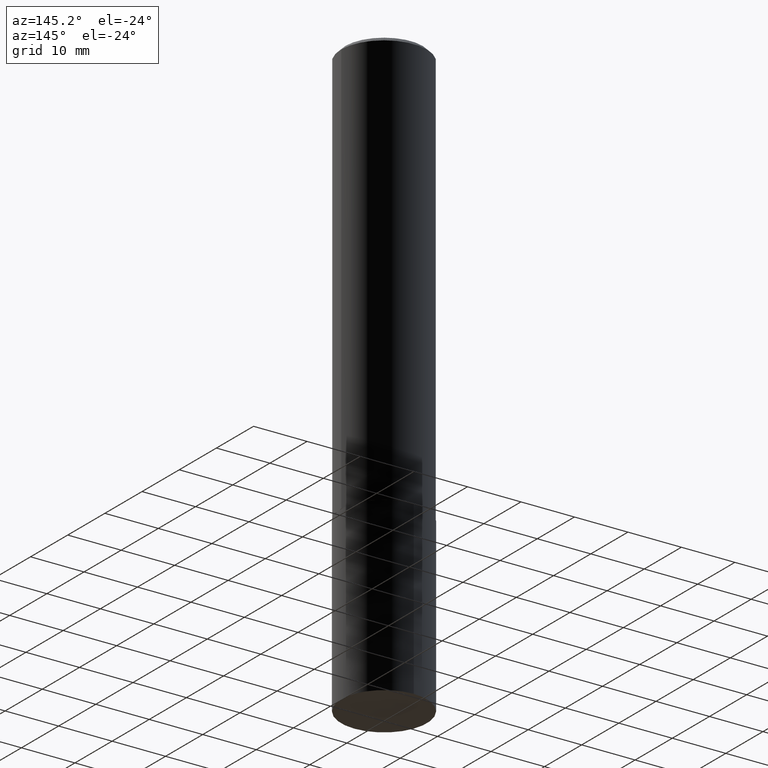
[diagram: clean part render]
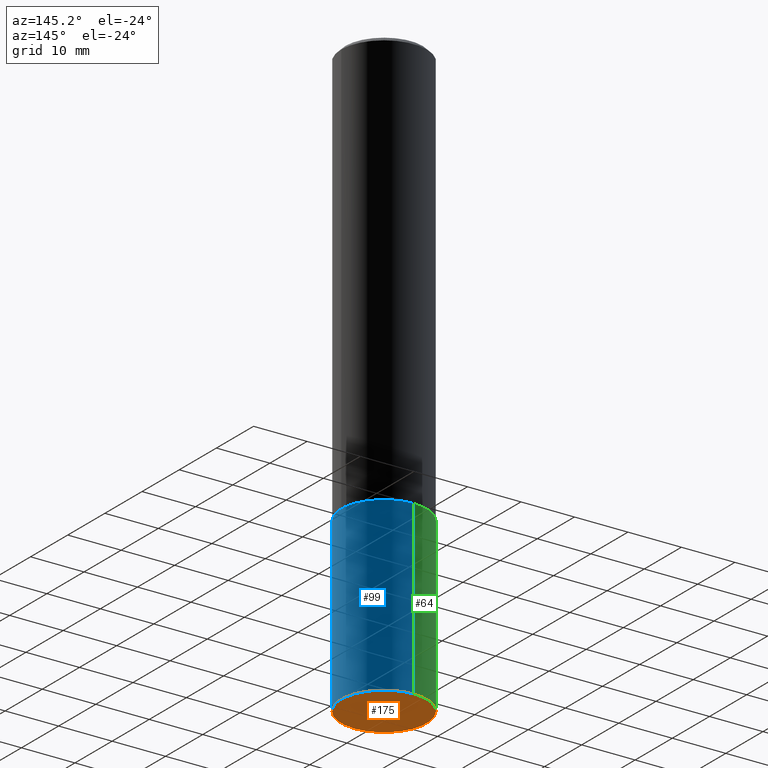
[diagram: same view with three faces highlighted in distinct colors, each labeled with its STEP entity id]
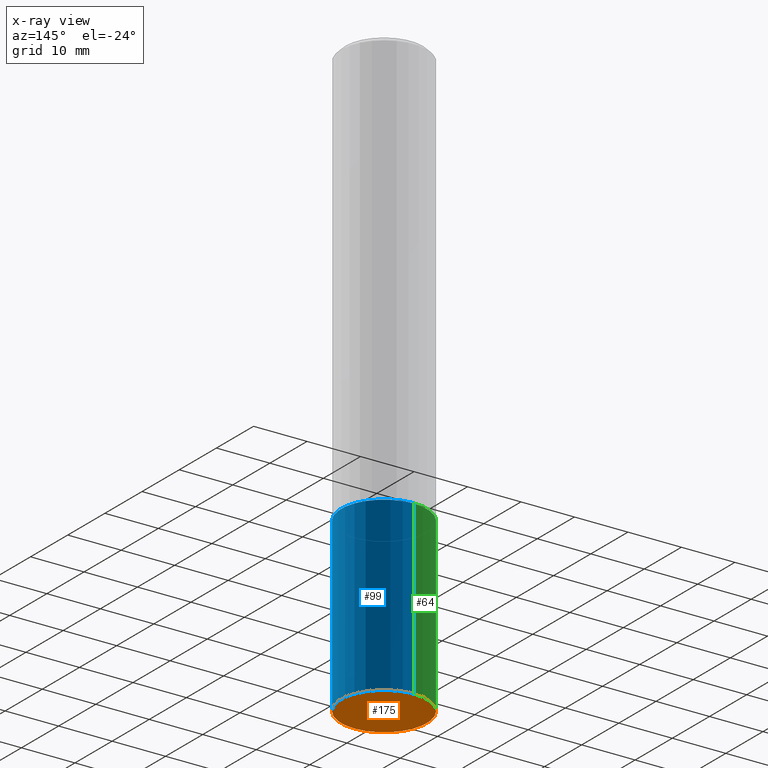
[diagram: x-ray of the same camera — body ghosted, the three highlighted faces saturated]
A machine part, auxiliary view with three faces highlighted in distinct colors.
The next image is the same camera in x-ray (body ghosted, the three faces saturated) — at least one of them is partly hidden behind the body in this view.
Their STEP definitions:

[orange] entity #175 — the highlighted planar face has unit normal (-0, 0, 1).
#44 = DIRECTION ( 'NONE',  ( -2.443450065282497779E-29, 3.494372290715320533E-15, 1.000000000000000000 ) ) ;
#59 = PLANE ( 'NONE',  #215 ) ;
#61 = CARTESIAN_POINT ( 'NONE',  ( 1.058804814540864683E-28, -1.512420083348695034E-14, -4.330700000000000216 ) ) ;
#66 = CARTESIAN_POINT ( 'NONE',  ( 1.583676628505946195E-28, -7.607737719022868426E-15, -4.330700000000000216 ) ) ;
#124 = EDGE_CURVE ( 'NONE', #199, #274, #287, .T. ) ;
#129 = ORIENTED_EDGE ( 'NONE', *, *, #255, .F. ) ;
#141 = DIRECTION ( 'NONE',  ( -2.443450065282498059E-29, 3.494372290715320533E-15, 1.000000000000000000 ) ) ;
#147 = CARTESIAN_POINT ( 'NONE',  ( 2.237854346276525915E-15, 0.3149499999999849087, -4.330700000000001104 ) ) ;
#150 = CARTESIAN_POINT ( 'NONE',  ( -2.199284095337183375E-15, -0.3149500000000151068, -4.330699999999998440 ) ) ;
#175 = ADVANCED_FACE ( 'NONE', ( #222 ), #59, .F. ) ;
#177 = AXIS2_PLACEMENT_3D ( 'NONE', #268, #232, #328 ) ;
#198 = CIRCLE ( 'NONE', #177, 0.3149500000000000077 ) ;
#199 = VERTEX_POINT ( 'NONE', #147 ) ;
#215 = AXIS2_PLACEMENT_3D ( 'NONE', #66, #44, #350 ) ;
#222 = FACE_OUTER_BOUND ( 'NONE', #340, .T. ) ;
#224 = ORIENTED_EDGE ( 'NONE', *, *, #124, .F. ) ;
#232 = DIRECTION ( 'NONE',  ( -2.443450065282498059E-29, 3.494372290715320533E-15, 1.000000000000000000 ) ) ;
#255 = EDGE_CURVE ( 'NONE', #274, #199, #198, .T. ) ;
#268 = CARTESIAN_POINT ( 'NONE',  ( 1.058804814540864683E-28, -1.512420083348695034E-14, -4.330700000000000216 ) ) ;
#274 = VERTEX_POINT ( 'NONE', #150 ) ;
#286 = DIRECTION ( 'NONE',  ( -6.982962677686265922E-15, -1.000000000000000000, 3.469564049740292770E-15 ) ) ;
#287 = CIRCLE ( 'NONE', #336, 0.3149500000000000077 ) ;
#328 = DIRECTION ( 'NONE',  ( -6.982962677686265922E-15, -1.000000000000000000, 3.469564049740292770E-15 ) ) ;
#336 = AXIS2_PLACEMENT_3D ( 'NONE', #61, #141, #286 ) ;
#340 = EDGE_LOOP ( 'NONE', ( #129, #224 ) ) ;
#350 = DIRECTION ( 'NONE',  ( -6.982962677686265922E-15, -1.000000000000000000, 3.494372290715320533E-15 ) ) ;

[blue] entity #99 — the highlighted cylindrical surface (partial cylindrical patch) has radius 7.9997 mm, axis along (-0, 0, 1).
#7 = DIRECTION ( 'NONE',  ( -2.443450065282498059E-29, 3.494372290715320533E-15, 1.000000000000000000 ) ) ;
#10 = DIRECTION ( 'NONE',  ( -6.982962677686265922E-15, -1.000000000000000000, 3.469564049740292770E-15 ) ) ;
#16 = ORIENTED_EDGE ( 'NONE', *, *, #195, .T. ) ;
#26 = ORIENTED_EDGE ( 'NONE', *, *, #284, .F. ) ;
#28 = ORIENTED_EDGE ( 'NONE', *, *, #320, .F. ) ;
#39 = CARTESIAN_POINT ( 'NONE',  ( -2.199284095337214140E-15, -0.3149500000000107214, -3.070699999999999541 ) ) ;
#41 = CARTESIAN_POINT ( 'NONE',  ( 7.509301063152699857E-29, -1.072129174718564879E-14, -3.070700000000000873 ) ) ;
#78 = AXIS2_PLACEMENT_3D ( 'NONE', #113, #7, #343 ) ;
#92 = DIRECTION ( 'NONE',  ( -2.443450065282498339E-29, 3.494372290715320533E-15, 1.000000000000000000 ) ) ;
#95 = AXIS2_PLACEMENT_3D ( 'NONE', #41, #327, #10 ) ;
#97 = CARTESIAN_POINT ( 'NONE',  ( -2.199284095337214140E-15, -0.3149500000000107214, -3.070699999999999541 ) ) ;
#99 = ADVANCED_FACE ( 'NONE', ( #172 ), #265, .T. ) ;
#113 = CARTESIAN_POINT ( 'NONE',  ( 7.509301063152699857E-29, -1.072129174718564879E-14, -3.070700000000000873 ) ) ;
#132 = VECTOR ( 'NONE', #301, 39.37007874015748143 ) ;
#147 = CARTESIAN_POINT ( 'NONE',  ( 2.237854346276525915E-15, 0.3149499999999849087, -4.330700000000001104 ) ) ;
#150 = CARTESIAN_POINT ( 'NONE',  ( -2.199284095337183375E-15, -0.3149500000000151068, -4.330699999999998440 ) ) ;
#167 = VERTEX_POINT ( 'NONE', #283 ) ;
#172 = FACE_OUTER_BOUND ( 'NONE', #313, .T. ) ;
#177 = AXIS2_PLACEMENT_3D ( 'NONE', #268, #232, #328 ) ;
#195 = EDGE_CURVE ( 'NONE', #199, #167, #234, .T. ) ;
#198 = CIRCLE ( 'NONE', #177, 0.3149500000000000077 ) ;
#199 = VERTEX_POINT ( 'NONE', #147 ) ;
#232 = DIRECTION ( 'NONE',  ( -2.443450065282498059E-29, 3.494372290715320533E-15, 1.000000000000000000 ) ) ;
#234 = LINE ( 'NONE', #322, #132 ) ;
#251 = CIRCLE ( 'NONE', #95, 0.3149500000000000077 ) ;
#255 = EDGE_CURVE ( 'NONE', #274, #199, #198, .T. ) ;
#259 = VECTOR ( 'NONE', #92, 39.37007874015748143 ) ;
#265 = CYLINDRICAL_SURFACE ( 'NONE', #78, 0.3149500000000000077 ) ;
#268 = CARTESIAN_POINT ( 'NONE',  ( 1.058804814540864683E-28, -1.512420083348695034E-14, -4.330700000000000216 ) ) ;
#274 = VERTEX_POINT ( 'NONE', #150 ) ;
#277 = VERTEX_POINT ( 'NONE', #97 ) ;
#283 = CARTESIAN_POINT ( 'NONE',  ( 2.237854346276541298E-15, 0.3149499999999892941, -3.070700000000001761 ) ) ;
#284 = EDGE_CURVE ( 'NONE', #277, #167, #251, .T. ) ;
#301 = DIRECTION ( 'NONE',  ( -2.443450065282498339E-29, 3.494372290715320533E-15, 1.000000000000000000 ) ) ;
#304 = ORIENTED_EDGE ( 'NONE', *, *, #255, .T. ) ;
#313 = EDGE_LOOP ( 'NONE', ( #304, #16, #26, #28 ) ) ;
#320 = EDGE_CURVE ( 'NONE', #274, #277, #349, .T. ) ;
#322 = CARTESIAN_POINT ( 'NONE',  ( 2.237854346276510532E-15, 0.3149499999999892941, -3.070700000000001761 ) ) ;
#327 = DIRECTION ( 'NONE',  ( -2.443450065282498059E-29, 3.494372290715320533E-15, 1.000000000000000000 ) ) ;
#328 = DIRECTION ( 'NONE',  ( -6.982962677686265922E-15, -1.000000000000000000, 3.469564049740292770E-15 ) ) ;
#343 = DIRECTION ( 'NONE',  ( -6.982962677686265922E-15, -1.000000000000000000, 3.469564049740292770E-15 ) ) ;
#349 = LINE ( 'NONE', #39, #259 ) ;

[green] entity #64 — the highlighted cylindrical surface (partial cylindrical patch) has radius 7.9997 mm, axis along (-0, 0, 1).
#2 = DIRECTION ( 'NONE',  ( -6.982962677686265922E-15, -1.000000000000000000, 3.469564049740292770E-15 ) ) ;
#14 = CARTESIAN_POINT ( 'NONE',  ( 7.509301063152699857E-29, -1.072129174718564879E-14, -3.070700000000000873 ) ) ;
#39 = CARTESIAN_POINT ( 'NONE',  ( -2.199284095337214140E-15, -0.3149500000000107214, -3.070699999999999541 ) ) ;
#61 = CARTESIAN_POINT ( 'NONE',  ( 1.058804814540864683E-28, -1.512420083348695034E-14, -4.330700000000000216 ) ) ;
#64 = ADVANCED_FACE ( 'NONE', ( #85 ), #226, .T. ) ;
#85 = FACE_OUTER_BOUND ( 'NONE', #214, .T. ) ;
#92 = DIRECTION ( 'NONE',  ( -2.443450065282498339E-29, 3.494372290715320533E-15, 1.000000000000000000 ) ) ;
#97 = CARTESIAN_POINT ( 'NONE',  ( -2.199284095337214140E-15, -0.3149500000000107214, -3.070699999999999541 ) ) ;
#124 = EDGE_CURVE ( 'NONE', #199, #274, #287, .T. ) ;
#132 = VECTOR ( 'NONE', #301, 39.37007874015748143 ) ;
#133 = AXIS2_PLACEMENT_3D ( 'NONE', #14, #351, #299 ) ;
#141 = DIRECTION ( 'NONE',  ( -2.443450065282498059E-29, 3.494372290715320533E-15, 1.000000000000000000 ) ) ;
#147 = CARTESIAN_POINT ( 'NONE',  ( 2.237854346276525915E-15, 0.3149499999999849087, -4.330700000000001104 ) ) ;
#150 = CARTESIAN_POINT ( 'NONE',  ( -2.199284095337183375E-15, -0.3149500000000151068, -4.330699999999998440 ) ) ;
#160 = ORIENTED_EDGE ( 'NONE', *, *, #124, .T. ) ;
#162 = CIRCLE ( 'NONE', #133, 0.3149500000000000077 ) ;
#167 = VERTEX_POINT ( 'NONE', #283 ) ;
#195 = EDGE_CURVE ( 'NONE', #199, #167, #234, .T. ) ;
#199 = VERTEX_POINT ( 'NONE', #147 ) ;
#214 = EDGE_LOOP ( 'NONE', ( #361, #160, #342, #306 ) ) ;
#226 = CYLINDRICAL_SURFACE ( 'NONE', #325, 0.3149500000000000077 ) ;
#228 = EDGE_CURVE ( 'NONE', #167, #277, #162, .T. ) ;
#234 = LINE ( 'NONE', #322, #132 ) ;
#259 = VECTOR ( 'NONE', #92, 39.37007874015748143 ) ;
#274 = VERTEX_POINT ( 'NONE', #150 ) ;
#277 = VERTEX_POINT ( 'NONE', #97 ) ;
#283 = CARTESIAN_POINT ( 'NONE',  ( 2.237854346276541298E-15, 0.3149499999999892941, -3.070700000000001761 ) ) ;
#285 = CARTESIAN_POINT ( 'NONE',  ( 7.509301063152699857E-29, -1.072129174718564879E-14, -3.070700000000000873 ) ) ;
#286 = DIRECTION ( 'NONE',  ( -6.982962677686265922E-15, -1.000000000000000000, 3.469564049740292770E-15 ) ) ;
#287 = CIRCLE ( 'NONE', #336, 0.3149500000000000077 ) ;
#290 = DIRECTION ( 'NONE',  ( -2.443450065282498059E-29, 3.494372290715320533E-15, 1.000000000000000000 ) ) ;
#299 = DIRECTION ( 'NONE',  ( -6.982962677686265922E-15, -1.000000000000000000, 3.469564049740292770E-15 ) ) ;
#301 = DIRECTION ( 'NONE',  ( -2.443450065282498339E-29, 3.494372290715320533E-15, 1.000000000000000000 ) ) ;
#306 = ORIENTED_EDGE ( 'NONE', *, *, #228, .F. ) ;
#320 = EDGE_CURVE ( 'NONE', #274, #277, #349, .T. ) ;
#322 = CARTESIAN_POINT ( 'NONE',  ( 2.237854346276510532E-15, 0.3149499999999892941, -3.070700000000001761 ) ) ;
#325 = AXIS2_PLACEMENT_3D ( 'NONE', #285, #290, #2 ) ;
#336 = AXIS2_PLACEMENT_3D ( 'NONE', #61, #141, #286 ) ;
#342 = ORIENTED_EDGE ( 'NONE', *, *, #320, .T. ) ;
#349 = LINE ( 'NONE', #39, #259 ) ;
#351 = DIRECTION ( 'NONE',  ( -2.443450065282498059E-29, 3.494372290715320533E-15, 1.000000000000000000 ) ) ;
#361 = ORIENTED_EDGE ( 'NONE', *, *, #195, .F. ) ;